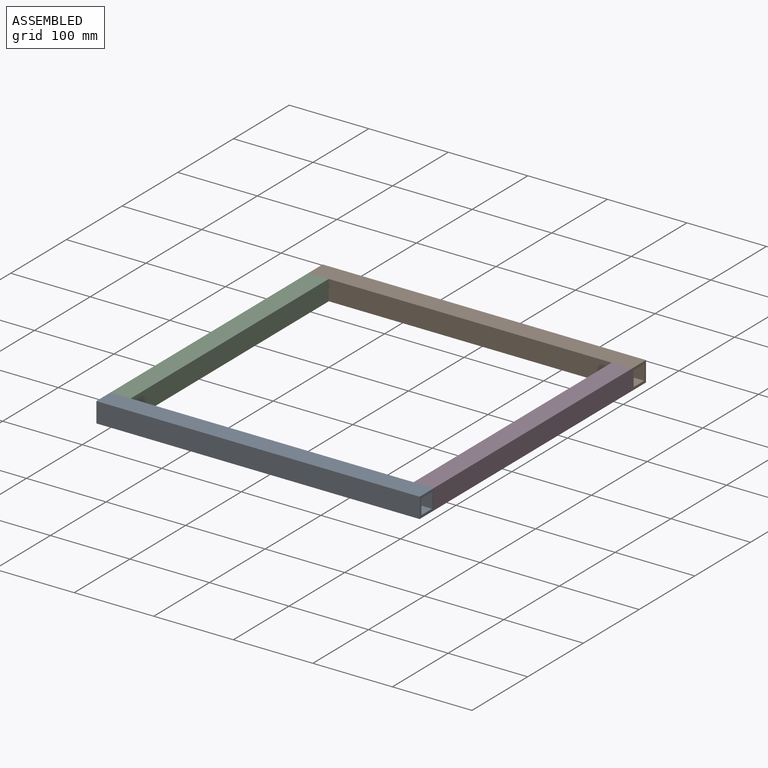
[diagram: assembled view]
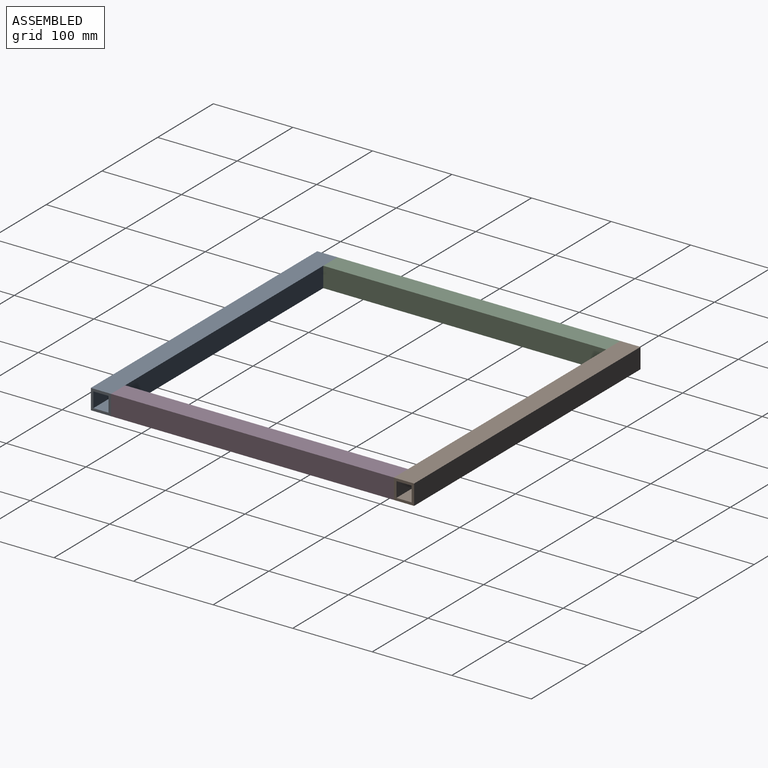
[diagram: assembled view, second angle]
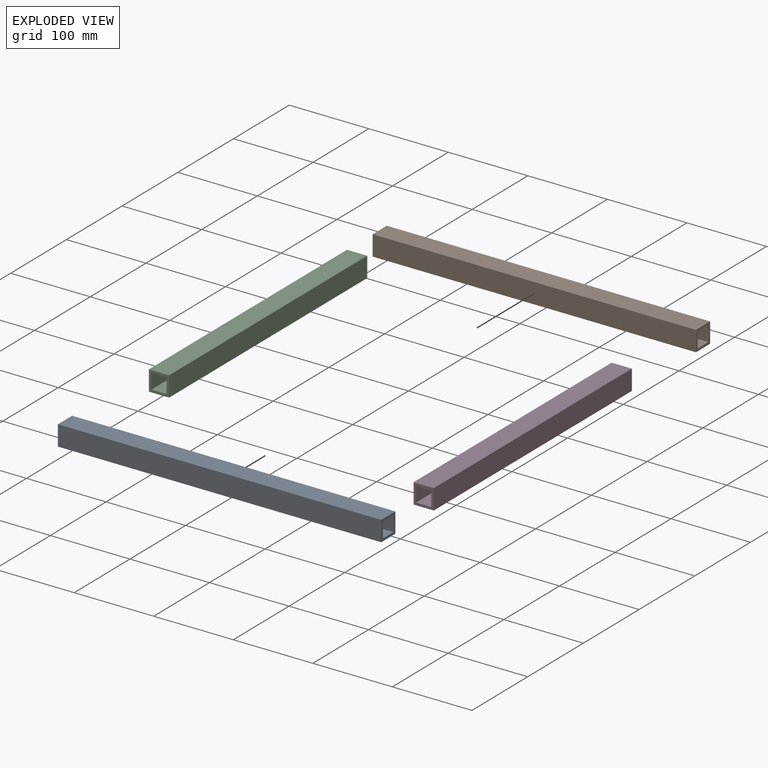
[diagram: exploded view]
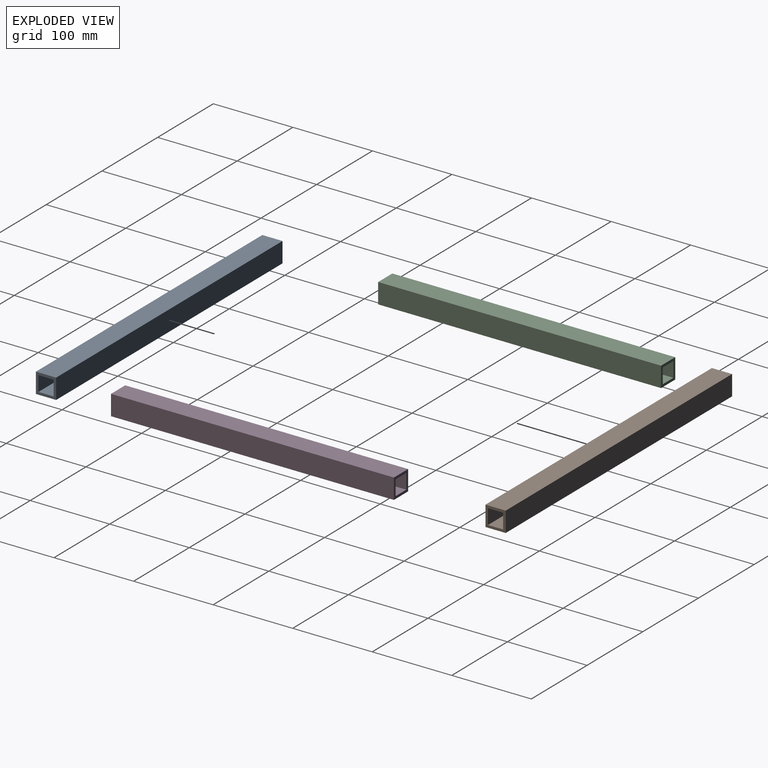
[diagram: exploded view, second angle]
ASSEMBLY  parts=4 mates=3
PART A: 10 faces, bbox 406.4x25.4x25.4 mm
  f0: plane 406.4x19.05mm, normal (0,1,0), area 7741.9mm2, adj f1,f7,f8,f9
  f1: plane 406.4x19.05mm, normal (0,0,-1), area 7741.9mm2, adj f0,f2,f8,f9
  f2: plane 406.4x19.05mm, normal (0,-1,0), area 7741.9mm2, adj f1,f7,f8,f9
  f3: plane 406.4x25.4mm, normal (0,1,0), area 10322.6mm2, adj f4,f6,f8,f9
  f4: plane 406.4x25.4mm, normal (0,0,1), area 10322.6mm2, adj f3,f5,f8,f9
  f5: plane 406.4x25.4mm, normal (0,-1,0), area 10322.6mm2, adj f4,f6,f8,f9
  f6: plane 406.4x25.4mm, normal (0,0,-1), area 10322.6mm2, adj f3,f5,f8,f9
  f7: plane 406.4x19.05mm, normal (0,0,1), area 7741.9mm2, adj f0,f2,f8,f9
  f8: plane 25.4x25.4mm, normal (1,0,0), area 282.3mm2, adj f0,f1,f2,f3,f4,f5,f6,f7
  f9: plane 25.4x25.4mm, normal (-1,0,0), area 282.3mm2, adj f0,f1,f2,f3,f4,f5,f6,f7
PART B: same geometry as A
PART C: 10 faces, bbox 25.4x355.6x25.4 mm
  f0: plane 355.6x19.05mm, normal (-1,0,0), area 6774.2mm2, adj f1,f7,f8,f9
  f1: plane 355.6x19.05mm, normal (0,0,1), area 6774.2mm2, adj f0,f2,f8,f9
  f2: plane 355.6x19.05mm, normal (1,0,0), area 6774.2mm2, adj f1,f7,f8,f9
  f3: plane 355.6x25.4mm, normal (1,0,0), area 9032.2mm2, adj f4,f6,f8,f9
  f4: plane 355.6x25.4mm, normal (0,0,1), area 9032.2mm2, adj f3,f5,f8,f9
  f5: plane 355.6x25.4mm, normal (-1,0,0), area 9032.2mm2, adj f4,f6,f8,f9
  f6: plane 355.6x25.4mm, normal (0,0,-1), area 9032.2mm2, adj f3,f5,f8,f9
  f7: plane 355.6x19.05mm, normal (0,0,-1), area 6774.2mm2, adj f0,f2,f8,f9
  f8: plane 25.4x25.4mm, normal (0,-1,0), area 282.3mm2, adj f0,f1,f2,f3,f4,f5,f6,f7
  f9: plane 25.4x25.4mm, normal (0,1,0), area 282.3mm2, adj f0,f1,f2,f3,f4,f5,f6,f7
PART D: same geometry as C
PLACE A t=(-7.21,-151.63,-26.8)mm
PLACE B t=(-7.21,229.37,-26.8)mm
PLACE C t=(5.49,216.67,-26.8)mm
PLACE D t=(386.49,216.67,-26.8)mm
MATE fastened D.f9 <-> B.f5  axis (0,1,0) through (399.19,216.67,-14.1)mm
MATE fastened C.f8 <-> A.f3  axis (0,-1,0) through (-7.21,-138.93,-14.1)mm
MATE fastened D.f8 <-> A.f3  axis (0,-1,0) through (399.19,-138.93,-14.1)mm
